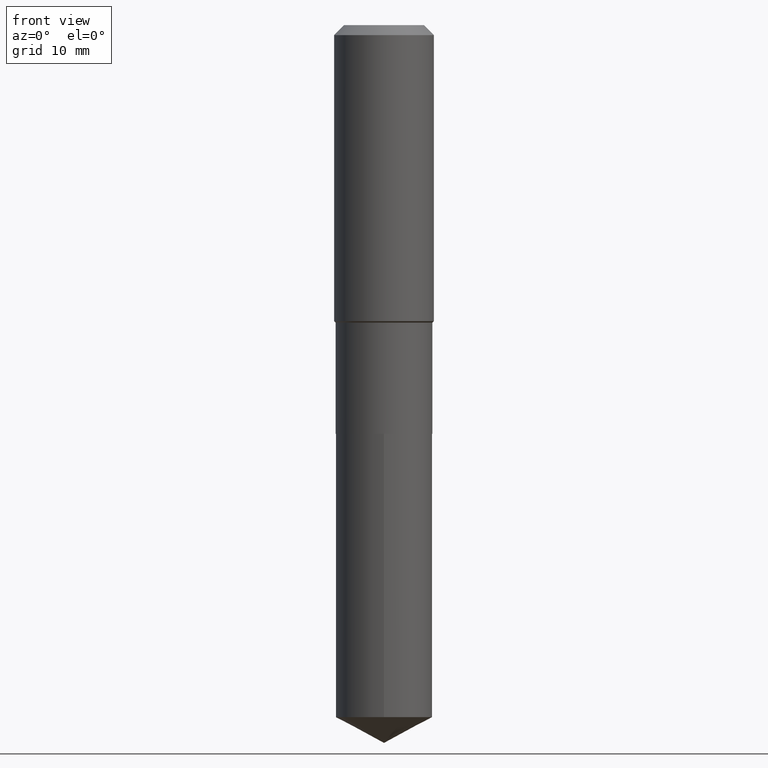
[diagram: clean part render]
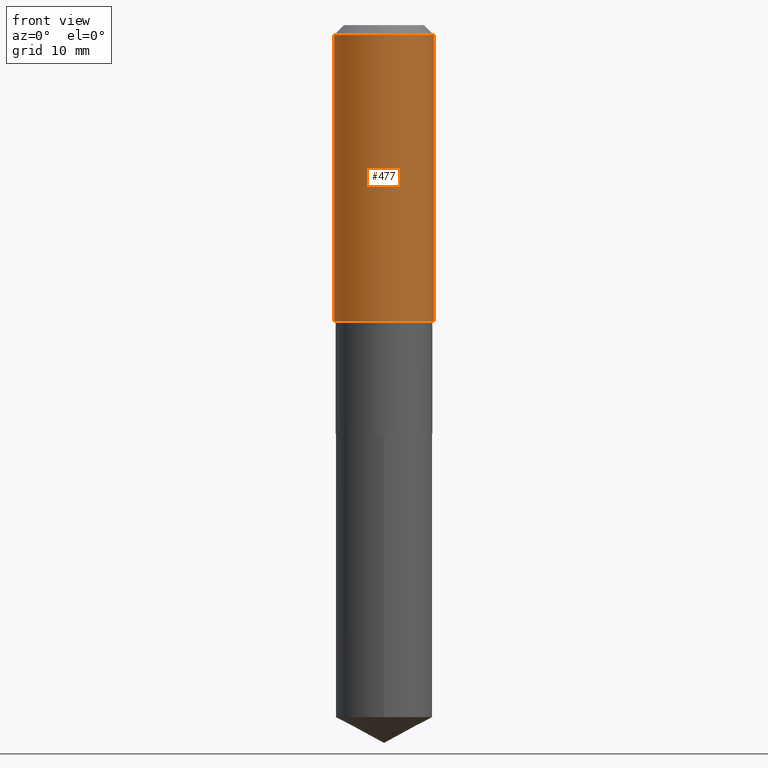
[diagram: same view with one face highlighted and labeled with its STEP entity id]
A machine part, front view. The second image highlights one B-rep face of the part: STEP entity #477.
In plain terms, the highlighted cylindrical surface (partial cylindrical patch) has radius 7.9997 mm, axis along (-0, 0, 1).
Its self-contained STEP definition (entity closure, byte-faithful):
#7 = ORIENTED_EDGE ( 'NONE', *, *, #322, .T. ) ;
#44 = VERTEX_POINT ( 'NONE', #75 ) ;
#75 = CARTESIAN_POINT ( 'NONE',  ( -0.3149500000000000077, -1.131669549400917718E-15, -0.06299000000000036514 ) ) ;
#78 = ORIENTED_EDGE ( 'NONE', *, *, #180, .T. ) ;
#89 = CARTESIAN_POINT ( 'NONE',  ( 1.540400801016026329E-30, -2.199284095337310135E-16, -0.06299000000000036514 ) ) ;
#96 = AXIS2_PLACEMENT_3D ( 'NONE', #367, #287, #400 ) ;
#103 = AXIS2_PLACEMENT_3D ( 'NONE', #159, #357, #126 ) ;
#114 = EDGE_LOOP ( 'NONE', ( #413, #78, #7, #470 ) ) ;
#123 = DIRECTION ( 'NONE',  ( -2.445468806185136877E-29, 3.491481338843145188E-15, 1.000000000000000000 ) ) ;
#126 = DIRECTION ( 'NONE',  ( 1.000000000000000000, -6.982962677686268288E-15, 0.000000000000000000 ) ) ;
#132 = CYLINDRICAL_SURFACE ( 'NONE', #96, 0.3149500000000001743 ) ;
#133 = CIRCLE ( 'NONE', #103, 0.3149500000000002298 ) ;
#148 = EDGE_CURVE ( 'NONE', #44, #224, #434, .T. ) ;
#159 = CARTESIAN_POINT ( 'NONE',  ( 4.566057081468576714E-29, -6.519119381820977551E-15, -1.867149999999999421 ) ) ;
#173 = FACE_OUTER_BOUND ( 'NONE', #114, .T. ) ;
#180 = EDGE_CURVE ( 'NONE', #190, #414, #133, .T. ) ;
#190 = VERTEX_POINT ( 'NONE', #387 ) ;
#224 = VERTEX_POINT ( 'NONE', #289 ) ;
#240 = LINE ( 'NONE', #313, #462 ) ;
#247 = LINE ( 'NONE', #468, #316 ) ;
#256 = CARTESIAN_POINT ( 'NONE',  ( 0.3149500000000002298, -8.718403477158269000E-15, -1.867149999999999421 ) ) ;
#287 = DIRECTION ( 'NONE',  ( -2.445468806185136597E-29, 3.491481338843145583E-15, 1.000000000000000000 ) ) ;
#289 = CARTESIAN_POINT ( 'NONE',  ( 0.3149500000000000077, -2.419212504871020909E-15, -0.06299000000000036514 ) ) ;
#293 = EDGE_CURVE ( 'NONE', #190, #44, #240, .T. ) ;
#313 = CARTESIAN_POINT ( 'NONE',  ( -0.3149500000000001743, 2.237854346276436774E-15, -1.549218606675783237E-29 ) ) ;
#316 = VECTOR ( 'NONE', #439, 39.37007874015748143 ) ;
#322 = EDGE_CURVE ( 'NONE', #414, #224, #247, .T. ) ;
#357 = DIRECTION ( 'NONE',  ( -2.445468806185136597E-29, 3.491481338843145583E-15, 1.000000000000000000 ) ) ;
#367 = CARTESIAN_POINT ( 'NONE',  ( 0.000000000000000000, 0.000000000000000000, 0.000000000000000000 ) ) ;
#387 = CARTESIAN_POINT ( 'NONE',  ( -0.3149500000000002298, -4.281265035544540777E-15, -1.867149999999999421 ) ) ;
#400 = DIRECTION ( 'NONE',  ( 1.000000000000000000, -6.982962677686265922E-15, 4.876176775795935232E-29 ) ) ;
#401 = DIRECTION ( 'NONE',  ( -2.445468806185136597E-29, 3.491481338843145583E-15, 1.000000000000000000 ) ) ;
#413 = ORIENTED_EDGE ( 'NONE', *, *, #293, .F. ) ;
#414 = VERTEX_POINT ( 'NONE', #256 ) ;
#420 = DIRECTION ( 'NONE',  ( 1.000000000000000000, -6.982962677686266711E-15, 0.000000000000000000 ) ) ;
#421 = AXIS2_PLACEMENT_3D ( 'NONE', #89, #401, #420 ) ;
#434 = CIRCLE ( 'NONE', #421, 0.3149500000000000077 ) ;
#439 = DIRECTION ( 'NONE',  ( -2.445468806185136877E-29, 3.491481338843145188E-15, 1.000000000000000000 ) ) ;
#462 = VECTOR ( 'NONE', #123, 39.37007874015748143 ) ;
#468 = CARTESIAN_POINT ( 'NONE',  ( 0.3149500000000001743, -2.199284095337290660E-15, 1.535751875536930690E-29 ) ) ;
#470 = ORIENTED_EDGE ( 'NONE', *, *, #148, .F. ) ;
#477 = ADVANCED_FACE ( 'NONE', ( #173 ), #132, .T. ) ;